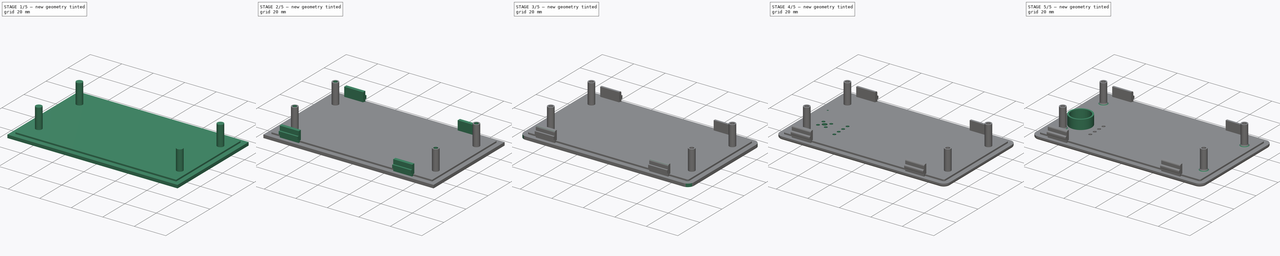
[diagram: build sequence overview — one tinted view per stage of 5, left to right]
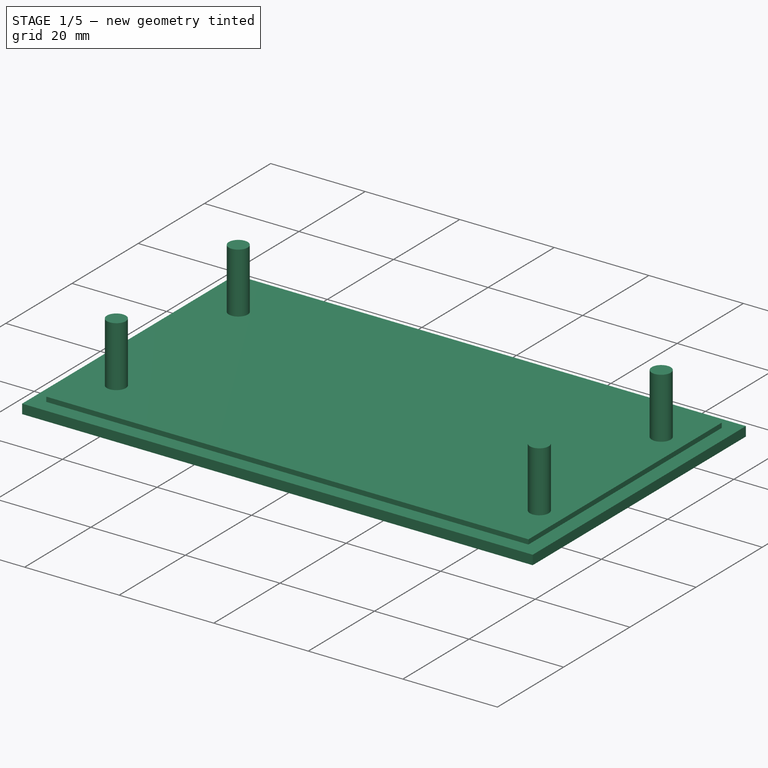
[diagram: stage 1 of 5 — iso view after this stage's code; geometry added in this stage tinted green]
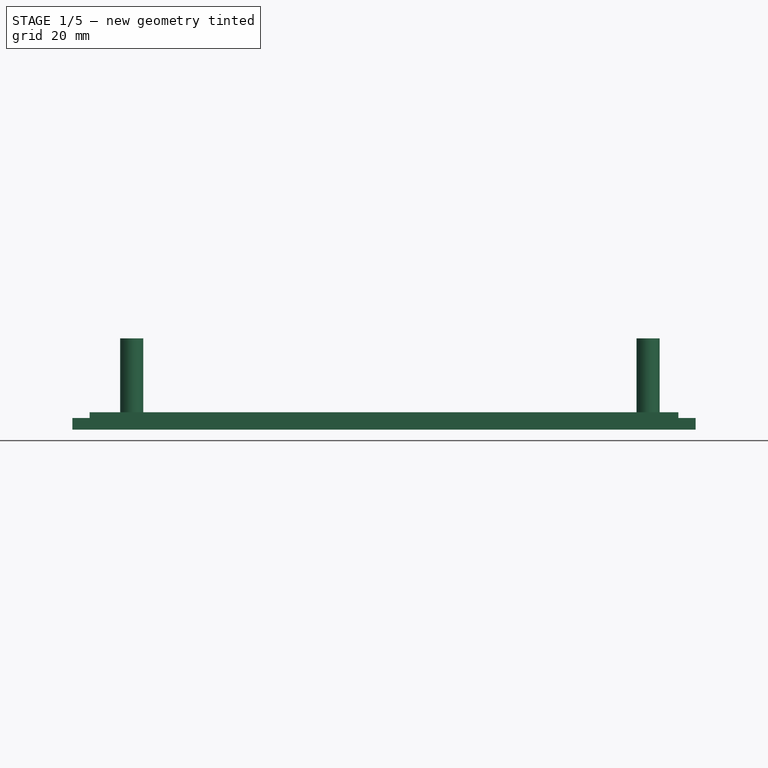
[diagram: stage 1 of 5 — front view after this stage's code; geometry added in this stage tinted green]
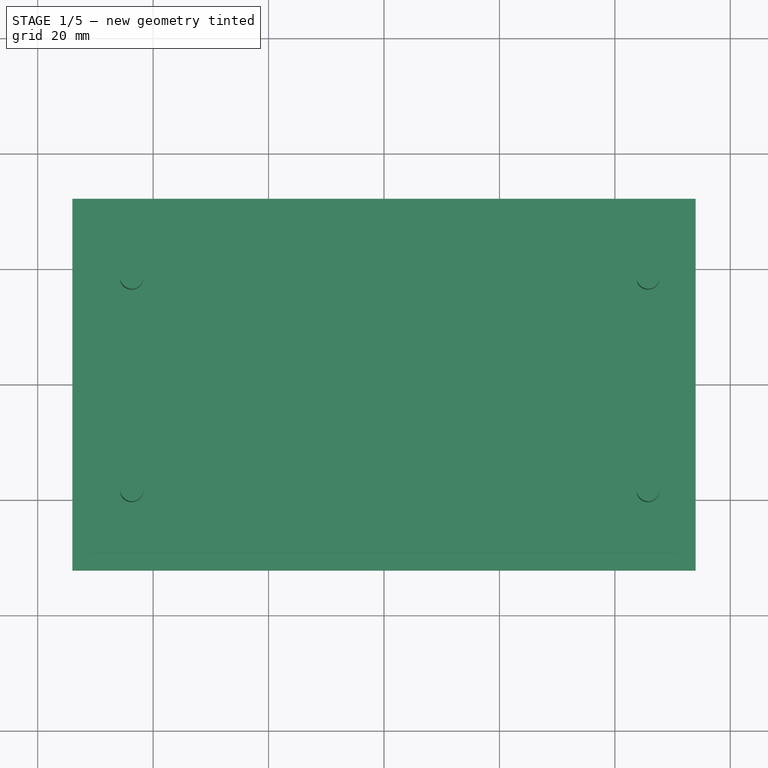
[diagram: stage 1 of 5 — top view after this stage's code; geometry added in this stage tinted green]
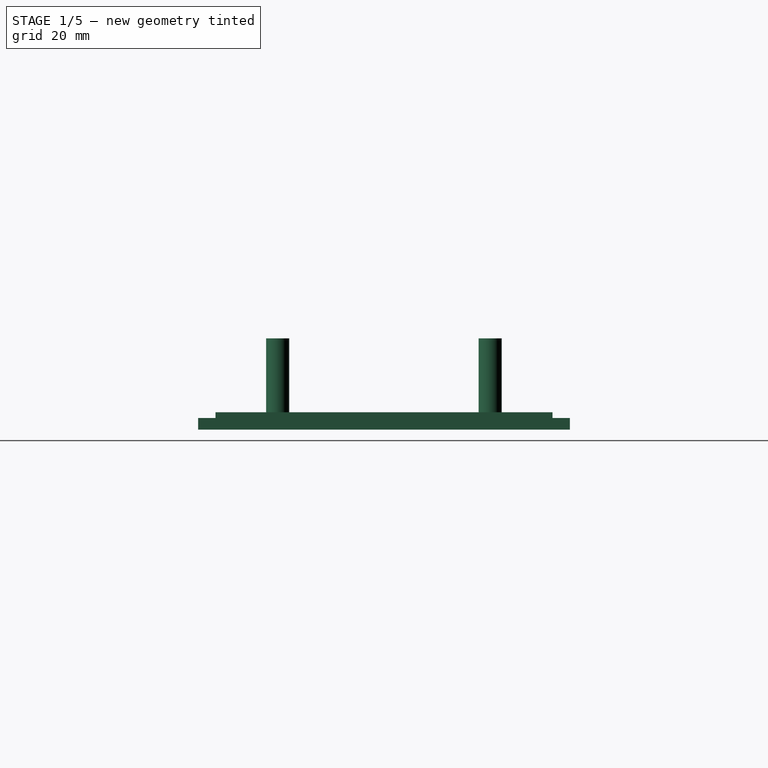
[diagram: stage 1 of 5 — right view after this stage's code; geometry added in this stage tinted green]
FCSTD DOCUMENT  (FreeCAD 0.17R13541 (Git))
Label: Case-Top
License: All rights reserved
LicenseURL: http://en.wikipedia.org/wiki/All_rights_reserved
objects: Sketcher::SketchObject×10, PartDesign::Pad×7, PartDesign::Fillet×7, PartDesign::Pocket×3, PartDesign::Body×1
note: 38 computed .brp shape members not serialized (recipe doc carries the construction recipe); baked Part::Feature solids carry a one-line shape summary decoded from their .brp

FEATURE [Sketcher::SketchObject] Sketch  label="Outer"
  MapMode = 5
  Support = -> [XY_Plane]
  sketch-geometry (8):
    g0: LineSegment [constr] StartX=-51 StartY=29.2 StartZ=0 EndX=51 EndY=29.2 EndZ=0
    g1: LineSegment [constr] StartX=51 StartY=29.2 StartZ=0 EndX=51 EndY=-29.2 EndZ=0
    g2: LineSegment [constr] StartX=51 StartY=-29.2 StartZ=0 EndX=-51 EndY=-29.2 EndZ=0
    g3: LineSegment [constr] StartX=-51 StartY=-29.2 StartZ=0 EndX=-51 EndY=29.2 EndZ=0
    g4: LineSegment StartX=-54 StartY=32.2 StartZ=0 EndX=54 EndY=32.2 EndZ=0
    g5: LineSegment StartX=54 StartY=32.2 StartZ=0 EndX=54 EndY=-32.2 EndZ=0
    g6: LineSegment StartX=54 StartY=-32.2 StartZ=0 EndX=-54 EndY=-32.2 EndZ=0
    g7: LineSegment StartX=-54 StartY=-32.2 StartZ=0 EndX=-54 EndY=32.2 EndZ=0
  constraints (24):
    c: Coincident(g0,g1)
    c: Coincident(g1,g2)
    c: Coincident(g2,g3)
    c: Coincident(g3,g0)
    c: Horizontal(g0)
    c: Horizontal(g2)
    c: Vertical(g1)
    c: Vertical(g3)
    c: Symmetric(g0,g0,g-2)
    c: Symmetric(g0,g1,g-1)
    c: Distance(g0) = 102
    c: DistanceY(g1,g1) = 58.4
    c: Coincident(g4,g5)
    c: Coincident(g5,g6)
    c: Coincident(g6,g7)
    c: Coincident(g7,g4)
    c: Horizontal(g4)
    c: Horizontal(g6)
    c: Vertical(g5)
    c: Vertical(g7)
    c: Symmetric(g4,g4,g-2)
    c: Symmetric(g4,g5,g-1)
    c: DistanceX(g4,g0) = 3
    c: DistanceY(g0,g4) = 3
FEATURE [PartDesign::Pad] Pad
  Length = 2
  Length2 = 100
  Profile = -> Sketch
  Type = 0
FEATURE [Sketcher::SketchObject] Sketch001  label="Inner"
  ExternalGeometry = -> [Pad]
  MapMode = 5
  Placement = pos=(0,0,2) rot=(0,0,1;0rad)
  Support = -> [Pad]
  sketch-geometry (4):
    g0: LineSegment StartX=-51 StartY=29.2 StartZ=0 EndX=51 EndY=29.2 EndZ=0
    g1: LineSegment StartX=51 StartY=29.2 StartZ=0 EndX=51 EndY=-29.2 EndZ=0
    g2: LineSegment StartX=51 StartY=-29.2 StartZ=0 EndX=-51 EndY=-29.2 EndZ=0
    g3: LineSegment StartX=-51 StartY=-29.2 StartZ=0 EndX=-51 EndY=29.2 EndZ=0
  constraints (12):
    c: Coincident(g0,g1)
    c: Coincident(g1,g2)
    c: Coincident(g2,g3)
    c: Coincident(g3,g0)
    c: Horizontal(g0)
    c: Horizontal(g2)
    c: Vertical(g1)
    c: Vertical(g3)
    c: Symmetric(g0,g0,g-2)
    c: Symmetric(g0,g1,g-1)
    c: DistanceX(g-3,g0) = 3
    c: DistanceY(g0,g-3) = 3
FEATURE [PartDesign::Pad] Pad001
  BaseFeature = -> Pad
  Length = 1
  Length2 = 100
  Profile = -> Sketch001
  Type = 0
FEATURE [Sketcher::SketchObject] Sketch002  label="PCB-Supporter"
  ExternalGeometry = -> [Pad001]
  MapMode = 5
  Placement = pos=(0,0,3) rot=(0,0,1;0rad)
  Support = -> [Pad001]
  sketch-geometry (4):
    g0: Circle CenterX=-43.71 CenterY=18.4 CenterZ=0 NormalX=0 NormalY=0 NormalZ=1 AngleXU=0 Radius=2
    g1: Circle CenterX=45.75 CenterY=18.4 CenterZ=0 NormalX=0 NormalY=0 NormalZ=1 AngleXU=0 Radius=2
    g2: Circle CenterX=-43.71 CenterY=-18.425 CenterZ=0 NormalX=0 NormalY=0 NormalZ=1 AngleXU=0 Radius=2
    g3: Circle CenterX=45.75 CenterY=-18.425 CenterZ=0 NormalX=0 NormalY=0 NormalZ=1 AngleXU=0 Radius=2
  constraints (12):
    c: Equal(g0,g1)
    c: Equal(g1,g3)
    c: Equal(g3,g2)
    c: Radius(g1) = 2
    c: Vertical(g0,g2)
    c: Vertical(g1,g3)
    c: Horizontal(g0,g1)
    c: Horizontal(g2,g3)
    c: DistanceX(g-4,g0) = 7.29
    c: DistanceX(g-4,g1) = 96.75
    c: DistanceY(g0,g-4) = 10.8
    c: DistanceY(g2,g-4) = 47.625
FEATURE [PartDesign::Pad] Pad002
  BaseFeature = -> Pad001
  Length = 12.8
  Length2 = 100
  Profile = -> Sketch002
  Type = 0
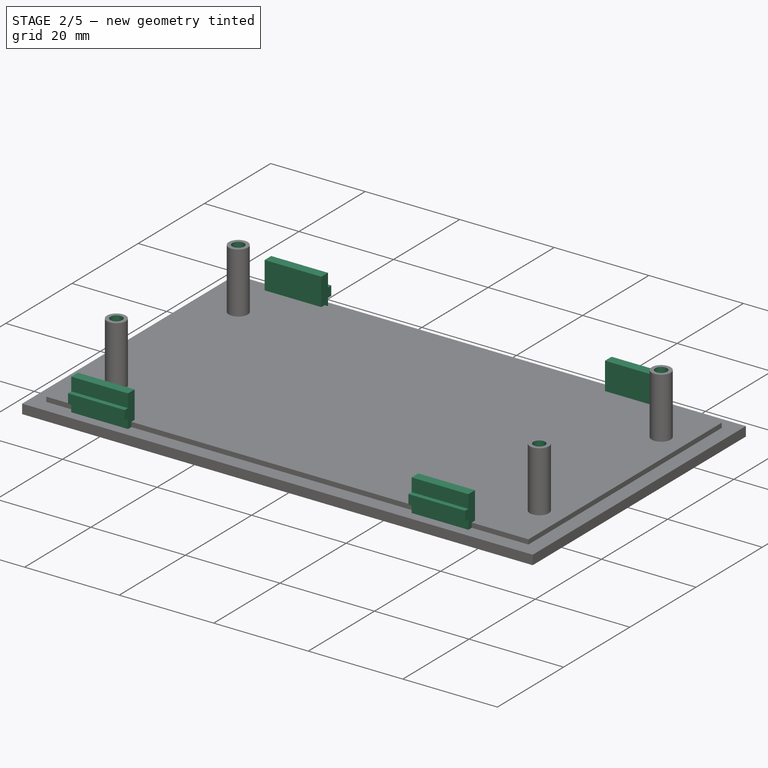
[diagram: stage 2 of 5 — iso view after this stage's code; geometry added in this stage tinted green]
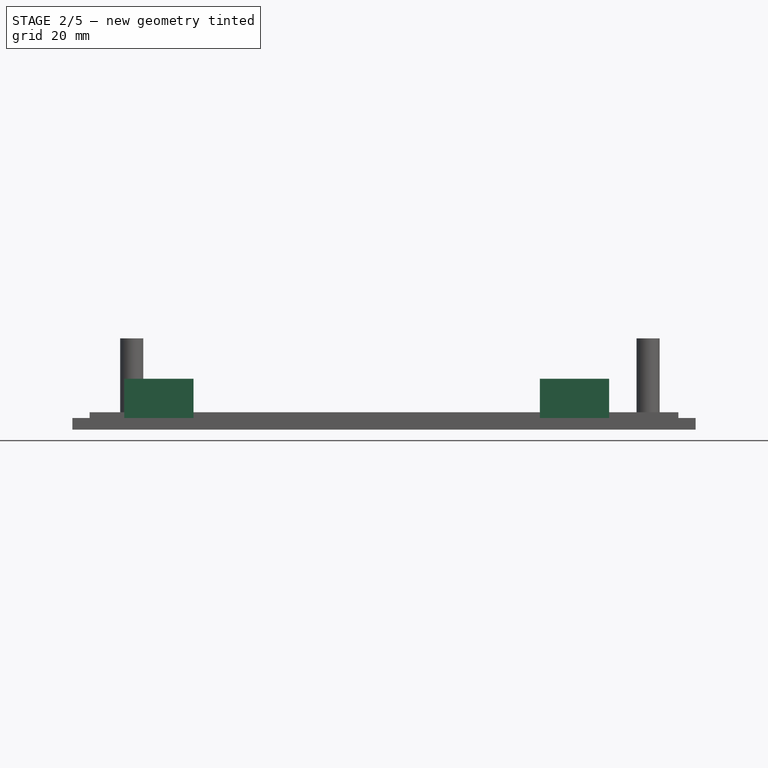
[diagram: stage 2 of 5 — front view after this stage's code; geometry added in this stage tinted green]
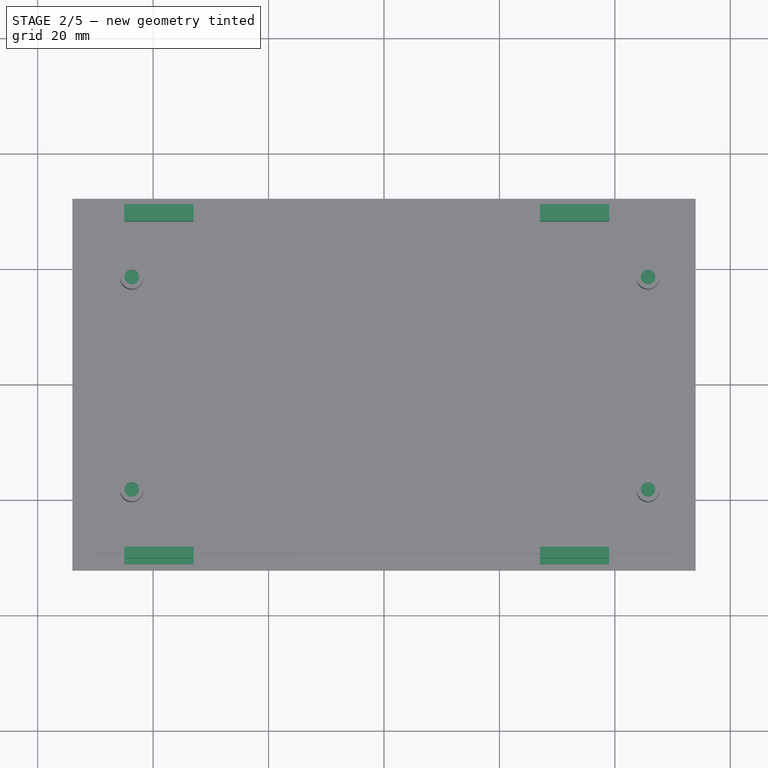
[diagram: stage 2 of 5 — top view after this stage's code; geometry added in this stage tinted green]
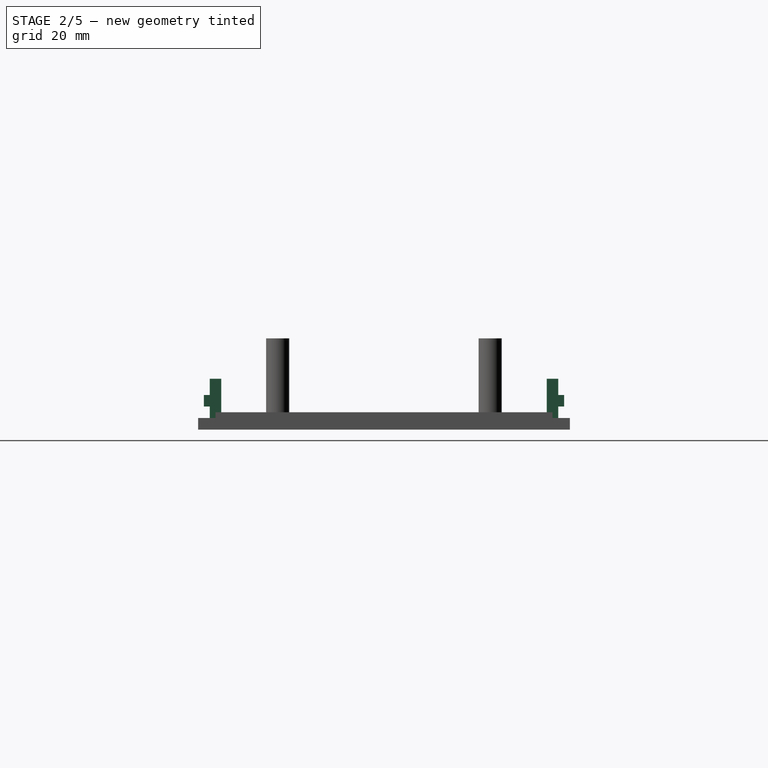
[diagram: stage 2 of 5 — right view after this stage's code; geometry added in this stage tinted green]
FEATURE [Sketcher::SketchObject] Sketch003  label="PCB-Hole"
  AttachmentOffset = pos=(0,0,16.8) rot=(0,0,1;0rad)
  ExternalGeometry = -> [Pad002]
  MapMode = 5
  Placement = pos=(0,0,16.8) rot=(0,0,1;0rad)
  Support = -> [XY_Plane]
  sketch-geometry (4):
    g0: Circle CenterX=-43.71 CenterY=18.4 CenterZ=0 NormalX=0 NormalY=0 NormalZ=1 AngleXU=0 Radius=1.25
    g1: Circle CenterX=45.75 CenterY=18.4 CenterZ=0 NormalX=0 NormalY=0 NormalZ=1 AngleXU=0 Radius=1.25
    g2: Circle CenterX=45.75 CenterY=-18.425 CenterZ=0 NormalX=0 NormalY=0 NormalZ=1 AngleXU=0 Radius=1.25
    g3: Circle CenterX=-43.71 CenterY=-18.425 CenterZ=0 NormalX=0 NormalY=0 NormalZ=1 AngleXU=0 Radius=1.25
  constraints (8):
    c: Coincident(g1,g-4)
    c: Coincident(g2,g-6)
    c: Coincident(g3,g-5)
    c: Coincident(g0,g-3)
    c: Radius(g0) = 1.25
    c: Equal(g0,g3)
    c: Equal(g0,g1)
    c: Equal(g0,g2)
FEATURE [PartDesign::Pocket] Pocket
  BaseFeature = -> Pad002
  Length = 4
  Length2 = 100
  Profile = -> Sketch003
  Type = 0
FEATURE [Sketcher::SketchObject] Sketch004  label="Locking-Bar"
  AttachmentOffset = pos=(0,0,-1) rot=(0,0,1;0rad)
  ExternalGeometry = -> [Pocket]
  MapMode = 5
  Placement = pos=(0,0,2) rot=(0,0,1;0rad)
  Support = -> [Pocket]
  sketch-geometry (16):
    g0: LineSegment StartX=-45 StartY=30.2 StartZ=0 EndX=-33 EndY=30.2 EndZ=0
    g1: LineSegment StartX=-33 StartY=30.2 StartZ=0 EndX=-33 EndY=28.2 EndZ=0
    g2: LineSegment StartX=-33 StartY=28.2 StartZ=0 EndX=-45 EndY=28.2 EndZ=0
    g3: LineSegment StartX=-45 StartY=28.2 StartZ=0 EndX=-45 EndY=30.2 EndZ=0
    g4: LineSegment StartX=27 StartY=30.2 StartZ=0 EndX=39 EndY=30.2 EndZ=0
    g5: LineSegment StartX=39 StartY=30.2 StartZ=0 EndX=39 EndY=28.2 EndZ=0
    g6: LineSegment StartX=39 StartY=28.2 StartZ=0 EndX=27 EndY=28.2 EndZ=0
    g7: LineSegment StartX=27 StartY=28.2 StartZ=0 EndX=27 EndY=30.2 EndZ=0
    g8: LineSegment StartX=-45 StartY=-28.2 StartZ=0 EndX=-33 EndY=-28.2 EndZ=0
    g9: LineSegment StartX=-33 StartY=-28.2 StartZ=0 EndX=-33 EndY=-30.2 EndZ=0
    g10: LineSegment StartX=-33 StartY=-30.2 StartZ=0 EndX=-45 EndY=-30.2 EndZ=0
    g11: LineSegment StartX=-45 StartY=-30.2 StartZ=0 EndX=-45 EndY=-28.2 EndZ=0
    g12: LineSegment StartX=27 StartY=-28.2 StartZ=0 EndX=39 EndY=-28.2 EndZ=0
    g13: LineSegment StartX=39 StartY=-28.2 StartZ=0 EndX=39 EndY=-30.2 EndZ=0
    g14: LineSegment StartX=39 StartY=-30.2 StartZ=0 EndX=27 EndY=-30.2 EndZ=0
    g15: LineSegment StartX=27 StartY=-30.2 StartZ=0 EndX=27 EndY=-28.2 EndZ=0
  constraints (48):
    c: Coincident(g0,g1)
    c: Coincident(g1,g2)
    c: Coincident(g2,g3)
    c: Coincident(g3,g0)
    c: Horizontal(g0)
    c: Horizontal(g2)
    c: Vertical(g1)
    c: Vertical(g3)
    c: Coincident(g4,g5)
    c: Coincident(g5,g6)
    c: Coincident(g6,g7)
    c: Coincident(g7,g4)
    c: Horizontal(g4)
    c: Horizontal(g6)
    c: Vertical(g5)
    c: Vertical(g7)
    c: Coincident(g8,g9)
    c: Coincident(g9,g10)
    c: Coincident(g10,g11)
    c: Coincident(g11,g8)
    c: Horizontal(g8)
    c: Horizontal(g10)
    c: Vertical(g9)
    c: Vertical(g11)
    c: Coincident(g12,g13)
    c: Coincident(g13,g14)
    c: Coincident(g14,g15)
    c: Coincident(g15,g12)
    c: Horizontal(g12)
    c: Horizontal(g14)
    c: Vertical(g13)
    c: Vertical(g15)
    c: Equal(g0,g4)
    c: Equal(g4,g12)
    c: Equal(g12,g8)
    c: Equal(g1,g5)
    c: Equal(g5,g13)
    c: Equal(g13,g9)
    c: DistanceY(g3,g3) = 2
    c: DistanceX(g0,g0) = 12
    c: DistanceX(g4,g-3) = 12
    c: DistanceX(g0,g-3) = 84
    c: Vertical(g1,g8)
    c: Vertical(g5,g13)
    c: DistanceY(g-4,g10) = -1
    c: DistanceY(g-3,g0) = 1
    c: Horizontal(g9,g14)
    c: Horizontal(g1,g6)
FEATURE [PartDesign::Pad] Pad003
  BaseFeature = -> Pocket
  Length = 6.8
  Length2 = 100
  Profile = -> Sketch004
  Type = 0
FEATURE [Sketcher::SketchObject] Sketch005  label="Locking-Bump-L"
  ExternalGeometry = -> [Pad003]
  MapMode = 5
  Placement = pos=(0,-30.2,0) rot=(1,0,0;1.5708rad)
  Support = -> [Pad003]
  sketch-geometry (8):
    g0: LineSegment StartX=39 StartY=6 StartZ=0 EndX=27 EndY=6 EndZ=0
    g1: LineSegment StartX=27 StartY=6 StartZ=0 EndX=27 EndY=4 EndZ=0
    g2: LineSegment StartX=27 StartY=4 StartZ=0 EndX=39 EndY=4 EndZ=0
    g3: LineSegment StartX=39 StartY=4 StartZ=0 EndX=39 EndY=6 EndZ=0
    g4: LineSegment StartX=-33 StartY=6 StartZ=0 EndX=-45 EndY=6 EndZ=0
    g5: LineSegment StartX=-45 StartY=6 StartZ=0 EndX=-45 EndY=4 EndZ=0
    g6: LineSegment StartX=-45 StartY=4 StartZ=0 EndX=-33 EndY=4 EndZ=0
    g7: LineSegment StartX=-33 StartY=4 StartZ=0 EndX=-33 EndY=6 EndZ=0
  constraints (24):
    c: Coincident(g0,g1)
    c: Coincident(g1,g2)
    c: Coincident(g2,g3)
    c: Coincident(g3,g0)
    c: Horizontal(g0)
    c: Horizontal(g2)
    c: Vertical(g1)
    c: Vertical(g3)
    c: Coincident(g4,g5)
    c: Coincident(g5,g6)
    c: Coincident(g6,g7)
    c: Coincident(g7,g4)
    c: Horizontal(g4)
    c: Horizontal(g6)
    c: Vertical(g5)
    c: Vertical(g7)
    c: Equal(g1,g7)
    c: DistanceY(g5,g5) = 2
    c: Horizontal(g1,g6)
    c: DistanceY(g-3,g1) = 1
    c: Vertical(g5,g-4)
    c: Vertical(g6,g-4)
    c: Vertical(g1,g-3)
    c: Vertical(g-3,g2)
FEATURE [PartDesign::Pad] Pad004
  BaseFeature = -> Pad003
  Length = 1
  Length2 = 100
  Profile = -> Sketch005
  Type = 0
FEATURE [Sketcher::SketchObject] Sketch006  label="Locking-Bump-R"
  ExternalGeometry = -> [Pad004]
  MapMode = 5
  Placement = pos=(0,30.2,0) rot=(0,0.707107,0.707107;3.14159rad)
  sketch-geometry (8):
    g0: LineSegment StartX=-39 StartY=6 StartZ=0 EndX=-27 EndY=6 EndZ=0
    g1: LineSegment StartX=-27 StartY=6 StartZ=0 EndX=-27 EndY=4 EndZ=0
    g2: LineSegment StartX=-27 StartY=4 StartZ=0 EndX=-39 EndY=4 EndZ=0
    g3: LineSegment StartX=-39 StartY=4 StartZ=0 EndX=-39 EndY=6 EndZ=0
    g4: LineSegment StartX=33 StartY=6 StartZ=0 EndX=45 EndY=6 EndZ=0
    g5: LineSegment StartX=45 StartY=6 StartZ=0 EndX=45 EndY=4 EndZ=0
    g6: LineSegment StartX=45 StartY=4 StartZ=0 EndX=33 EndY=4 EndZ=0
    g7: LineSegment StartX=33 StartY=4 StartZ=0 EndX=33 EndY=6 EndZ=0
  constraints (24):
    c: Coincident(g0,g1)
    c: Coincident(g1,g2)
    c: Coincident(g2,g3)
    c: Coincident(g3,g0)
    c: Horizontal(g0)
    c: Horizontal(g2)
    c: Vertical(g1)
    c: Vertical(g3)
    c: Coincident(g4,g5)
    c: Coincident(g5,g6)
    c: Coincident(g6,g7)
    c: Coincident(g7,g4)
    c: Horizontal(g4)
    c: Horizontal(g6)
    c: Vertical(g5)
    c: Vertical(g7)
    c: Vertical(g2,g-3)
    c: Vertical(g-3,g1)
    c: Vertical(g-4,g6)
    c: Vertical(g-4,g5)
    c: Horizontal(g1,g6)
    c: Equal(g3,g5)
    c: DistanceY(g3,g3) = 2
    c: DistanceY(g-3,g1) = 1
FEATURE [PartDesign::Pad] Pad005
  BaseFeature = -> Pad004
  Length = 1
  Length2 = 100
  Profile = -> Sketch006
  Type = 0
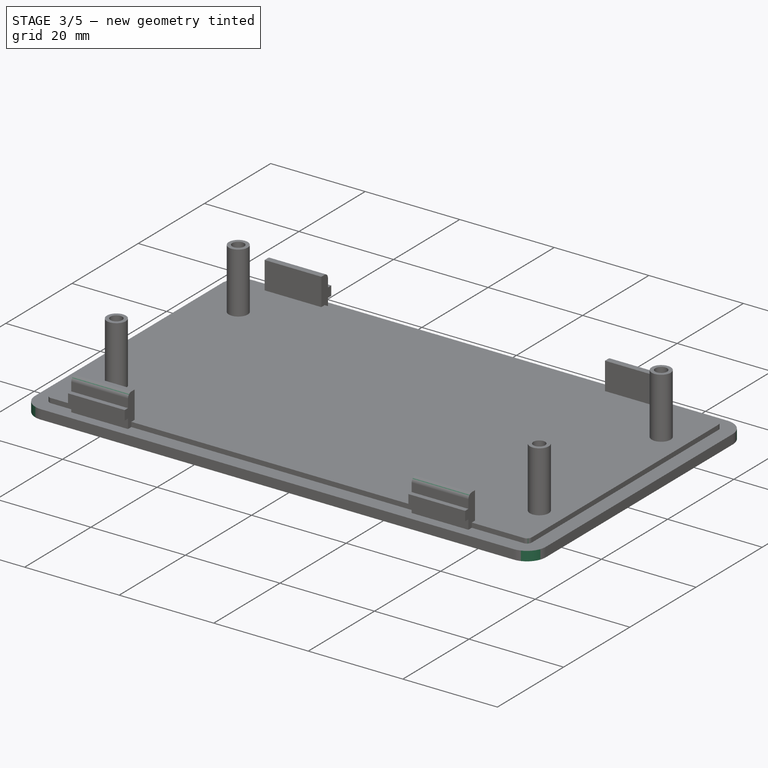
[diagram: stage 3 of 5 — iso view after this stage's code; geometry added in this stage tinted green]
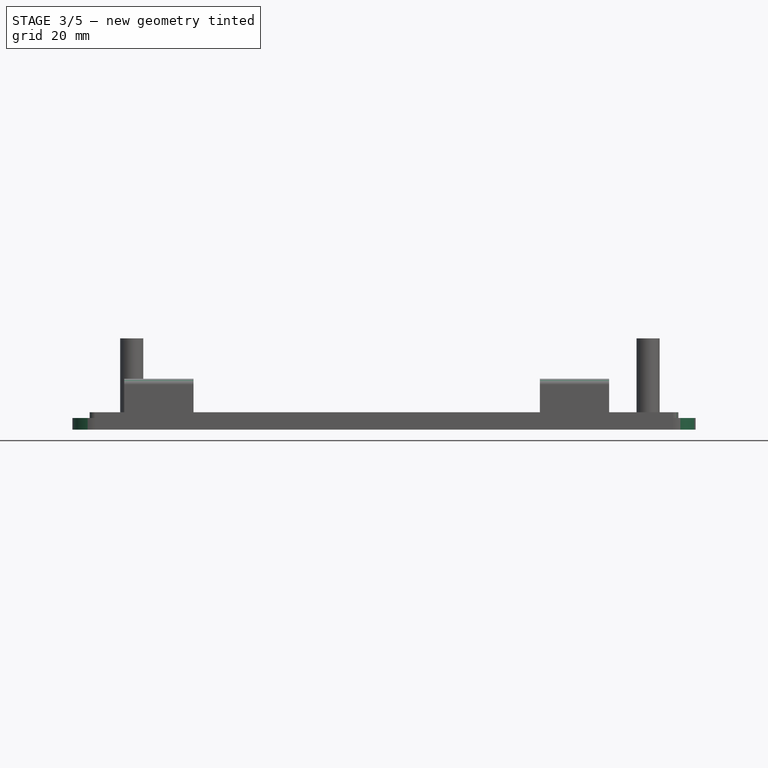
[diagram: stage 3 of 5 — front view after this stage's code; geometry added in this stage tinted green]
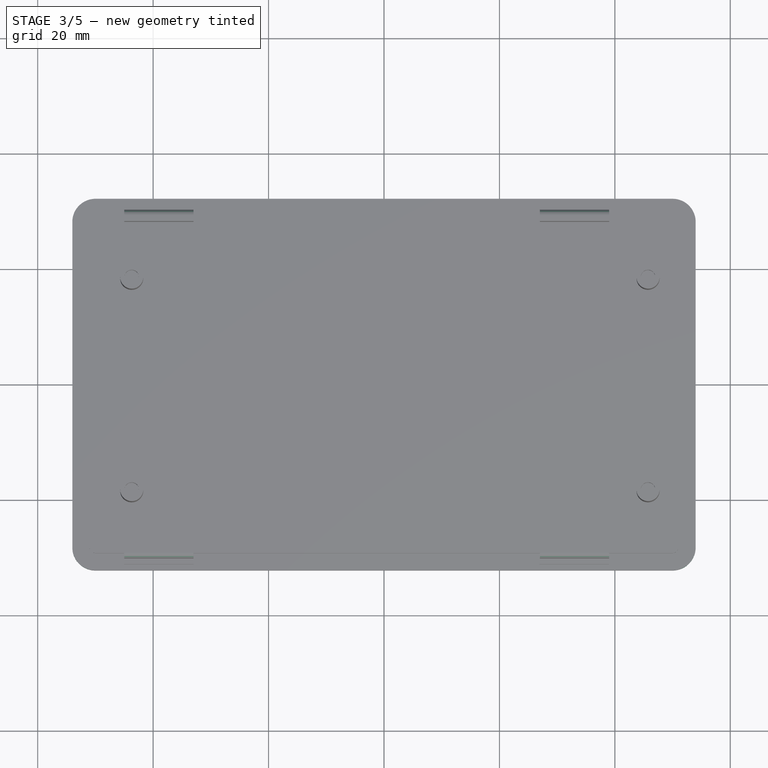
[diagram: stage 3 of 5 — top view after this stage's code; geometry added in this stage tinted green]
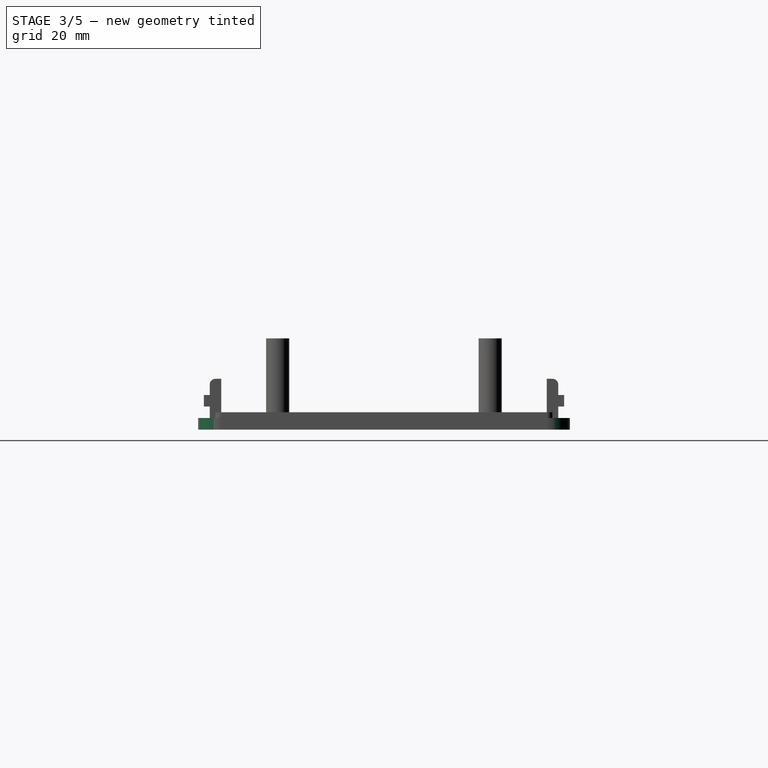
[diagram: stage 3 of 5 — right view after this stage's code; geometry added in this stage tinted green]
FEATURE [PartDesign::Fillet] Fillet  label="Fillet-Outer"
  Base = -> Pad005 [Edge1,Edge2,Edge5,Edge8]
  BaseFeature = -> Pad005
  Radius = 4
FEATURE [PartDesign::Fillet] Fillet001  label="Fillet-Inner"
  Base = -> Fillet [Edge47,Edge114,Edge81,Edge78]
  BaseFeature = -> Fillet
  Radius = 1
FEATURE [PartDesign::Fillet] Fillet002  label="Fillet-Locking-Bar"
  Base = -> Fillet001 [Edge151,Edge171,Edge154,Edge138]
  BaseFeature = -> Fillet001
  Radius = 1
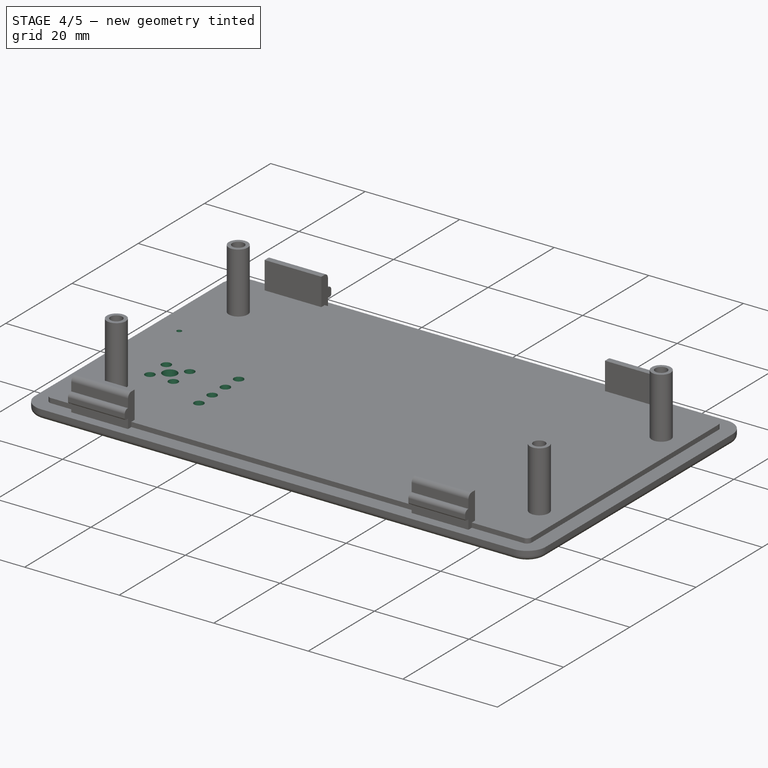
[diagram: stage 4 of 5 — iso view after this stage's code; geometry added in this stage tinted green]
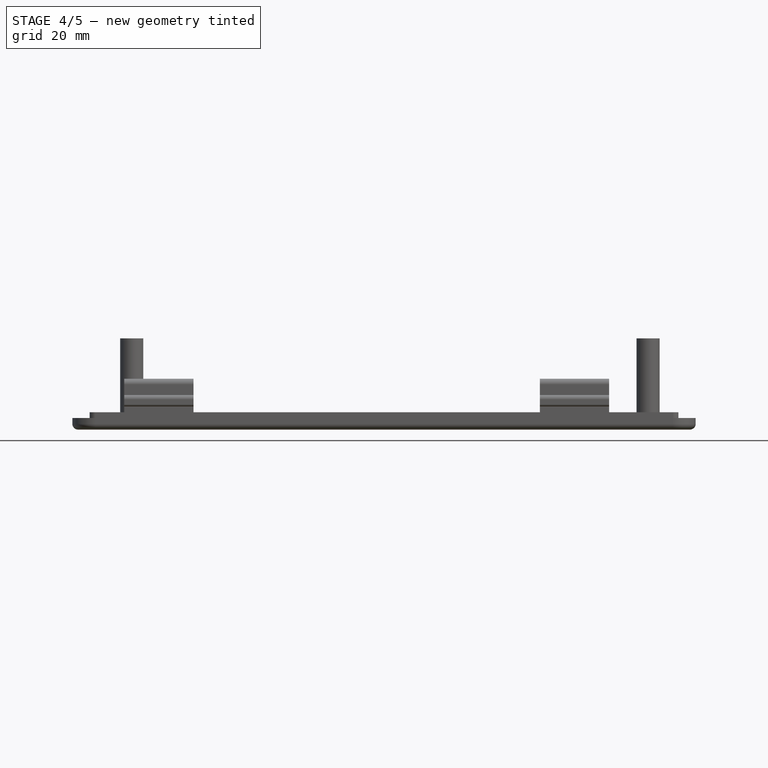
[diagram: stage 4 of 5 — front view after this stage's code; geometry added in this stage tinted green]
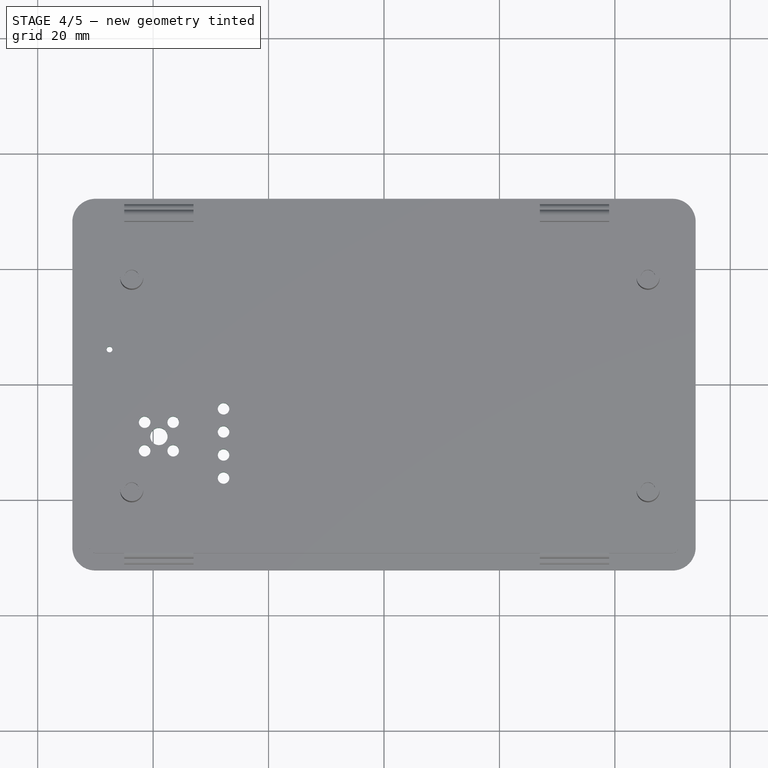
[diagram: stage 4 of 5 — top view after this stage's code; geometry added in this stage tinted green]
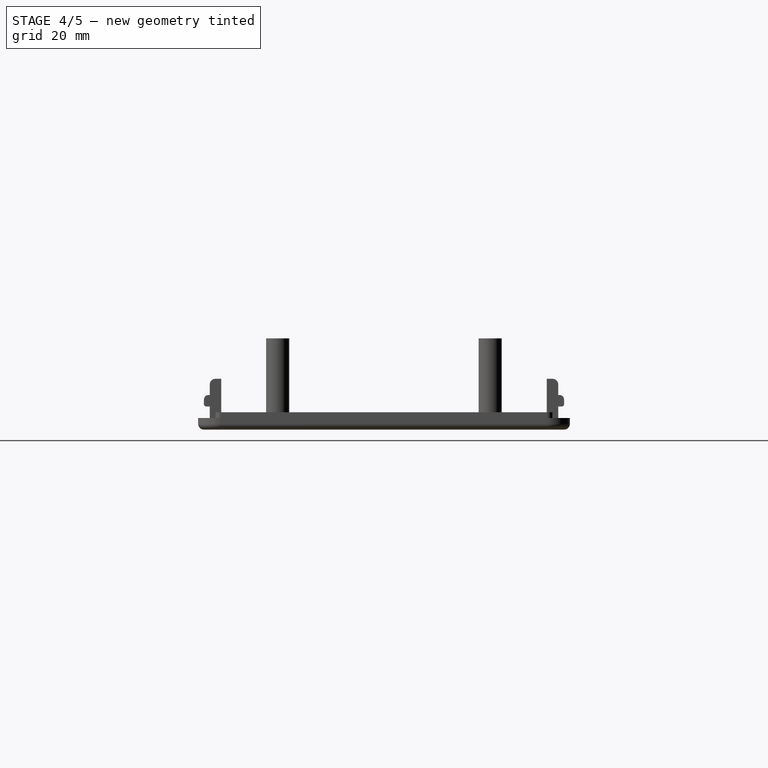
[diagram: stage 4 of 5 — right view after this stage's code; geometry added in this stage tinted green]
FEATURE [PartDesign::Fillet] Fillet003  label="Fillet-Locking-Bump-Up"
  Base = -> Fillet002 [Edge85,Edge204,Edge202,Edge203]
  BaseFeature = -> Fillet002
  Radius = 0.8
FEATURE [PartDesign::Fillet] Fillet004  label="Fillet-Locking-Bump-Bottom"
  Base = -> Fillet003 [Edge210,Edge208,Edge19,Edge209]
  BaseFeature = -> Fillet003
  Radius = 0.4
FEATURE [PartDesign::Fillet] Fillet005  label="Fillet-Top"
  Base = -> Fillet004 [Edge173]
  BaseFeature = -> Fillet004
  Radius = 1
FEATURE [Sketcher::SketchObject] Sketch007  label="Top-Hole"
  ExternalGeometry = -> [Fillet005]
  MapMode = 5
  Placement = pos=(0,0,3) rot=(0,0,1;0rad)
  Support = -> [Fillet005]
  sketch-geometry (16):
    g0: Circle CenterX=-39 CenterY=-9 CenterZ=0 NormalX=0 NormalY=0 NormalZ=1 AngleXU=0 Radius=1.5
    g1: Circle CenterX=-27.8 CenterY=-4.2 CenterZ=0 NormalX=0 NormalY=0 NormalZ=1 AngleXU=0 Radius=1
    g2: Circle CenterX=-27.8 CenterY=-8.2 CenterZ=0 NormalX=0 NormalY=0 NormalZ=1 AngleXU=0 Radius=1
    g3: Circle CenterX=-27.8 CenterY=-12.2 CenterZ=0 NormalX=0 NormalY=0 NormalZ=1 AngleXU=0 Radius=1
    g4: Circle CenterX=-27.8 CenterY=-16.2 CenterZ=0 NormalX=0 NormalY=0 NormalZ=1 AngleXU=0 Radius=1
    g5: Circle CenterX=-47.56 CenterY=6.08 CenterZ=0 NormalX=0 NormalY=0 NormalZ=1 AngleXU=0 Radius=0.5
    g6: LineSegment [constr] StartX=-41.4749 StartY=-6.52513 StartZ=0 EndX=-36.5251 EndY=-6.52513 EndZ=0
    g7: LineSegment [constr] StartX=-36.5251 StartY=-6.52513 StartZ=0 EndX=-36.5251 EndY=-11.4749 EndZ=0
    g8: LineSegment [constr] StartX=-36.5251 StartY=-11.4749 StartZ=0 EndX=-41.4749 EndY=-11.4749 EndZ=0
    g9: LineSegment [constr] StartX=-41.4749 StartY=-11.4749 StartZ=0 EndX=-41.4749 EndY=-6.52513 EndZ=0
    g10: LineSegment [constr] StartX=-41.4749 StartY=-6.52513 StartZ=0 EndX=-39 EndY=-9 EndZ=0
    g11: Circle CenterX=-41.4749 CenterY=-6.52513 CenterZ=0 NormalX=0 NormalY=0 NormalZ=1 AngleXU=0 Radius=1
    g12: Circle CenterX=-36.5251 CenterY=-6.52513 CenterZ=0 NormalX=0 NormalY=0 NormalZ=1 AngleXU=0 Radius=1
    g13: Circle CenterX=-36.5251 CenterY=-11.4749 CenterZ=0 NormalX=0 NormalY=0 NormalZ=1 AngleXU=0 Radius=1
    g14: Circle CenterX=-41.4749 CenterY=-11.4749 CenterZ=0 NormalX=0 NormalY=0 NormalZ=1 AngleXU=0 Radius=1
    g15: LineSegment [constr] StartX=-36.5251 StartY=-11.4749 StartZ=0 EndX=-39 EndY=-9 EndZ=0
  constraints (42):
    c: DistanceX(g0,g-6) = 90
    c: DistanceY(g-5,g0) = 20.2
    c: Vertical(g1,g2)
    c: Vertical(g2,g3)
    c: Vertical(g3,g4)
    c: Radius(g1) = 1
    c: Equal(g1,g2)
    c: Equal(g1,g3)
    c: Equal(g1,g4)
    c: DistanceX(g4,g-6) = 78.8
    c: DistanceY(g-5,g4) = 13
    c: DistanceY(g4,g3) = 4
    c: DistanceY(g3,g2) = 4
    c: DistanceY(g2,g1) = 4
    c: DistanceX(g5,g-6) = 98.56
    c: DistanceY(g-5,g5) = 35.28
    c: Radius(g0) = 1.5
    c: Radius(g5) = 0.5
    c: Coincident(g6,g7)
    c: Coincident(g7,g8)
    c: Coincident(g8,g9)
    c: Coincident(g9,g6)
    c: Horizontal(g6)
    c: Horizontal(g8)
    c: Vertical(g7)
    c: Vertical(g9)
    c: Coincident(g10,g6)
    c: Coincident(g10,g0)
    c: Angle(g10,g6) = 0.785398
    c: Coincident(g11,g6)
    c: Coincident(g12,g6)
    c: Coincident(g13,g7)
    c: Coincident(g14,g8)
    c: Radius(g12) = 1
    c: Equal(g12,g13)
    c: Equal(g12,g14)
    c: Equal(g12,g11)
    c: Coincident(g15,g7)
    c: Coincident(g15,g0)
    c: Angle(g15,g8) = 0.785398
    c: Equal(g15,g10)
    c: Distance(g0,g6) = 3.5
FEATURE [PartDesign::Pocket] Pocket001
  BaseFeature = -> Fillet005
  Length = 5
  Length2 = 100
  Profile = -> Sketch007
  Type = 1
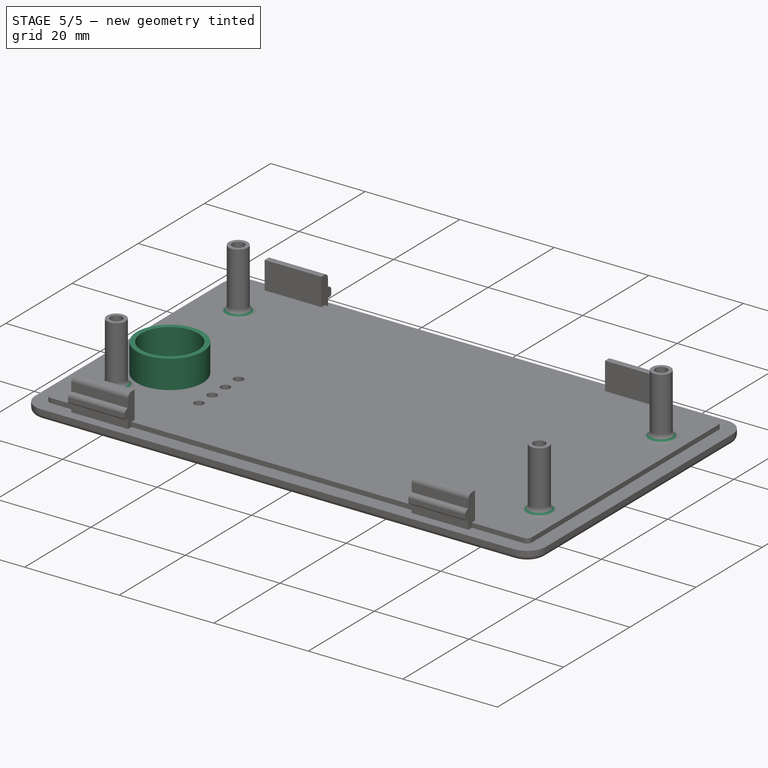
[diagram: stage 5 of 5 — iso view after this stage's code; geometry added in this stage tinted green]
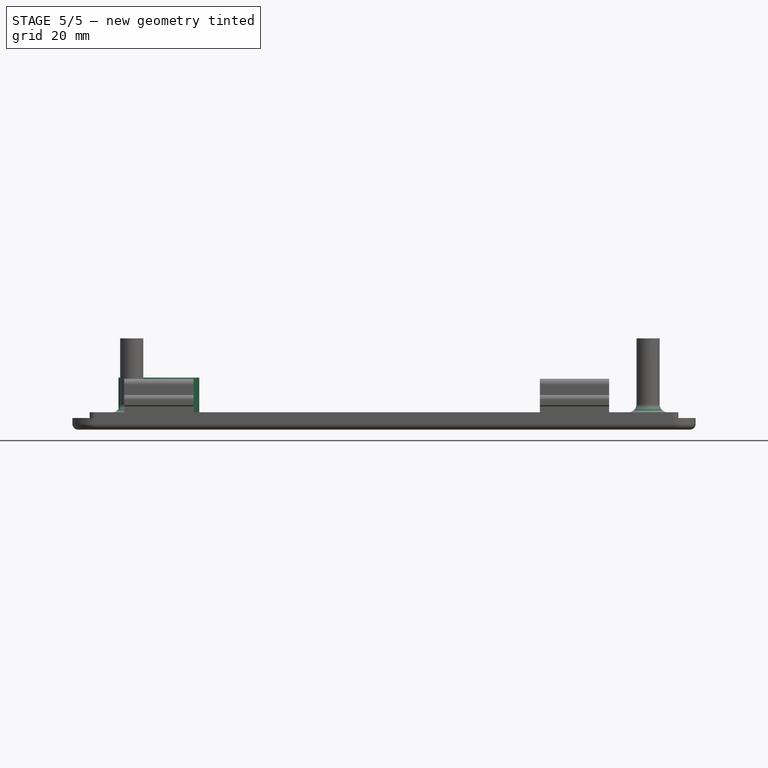
[diagram: stage 5 of 5 — front view after this stage's code; geometry added in this stage tinted green]
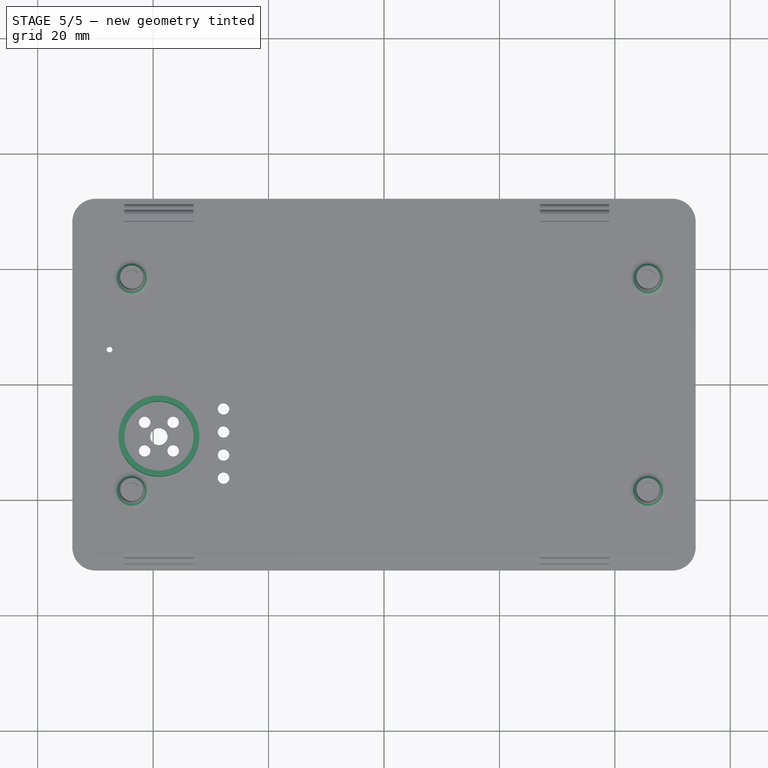
[diagram: stage 5 of 5 — top view after this stage's code; geometry added in this stage tinted green]
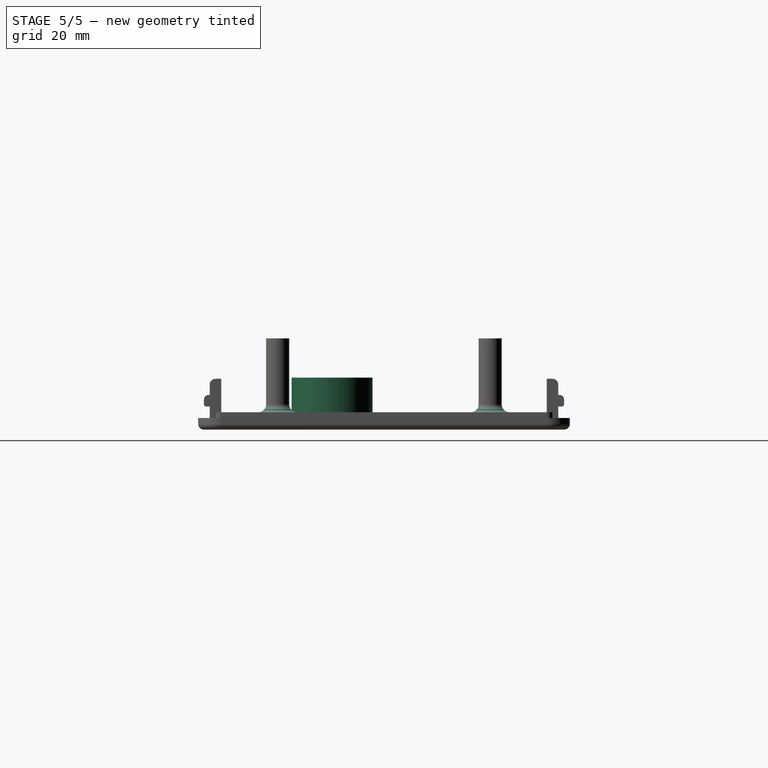
[diagram: stage 5 of 5 — right view after this stage's code; geometry added in this stage tinted green]
FEATURE [Sketcher::SketchObject] Sketch008  label="Buzzer-Outer"
  ExternalGeometry = -> [Pocket001]
  MapMode = 5
  Placement = pos=(0,0,3) rot=(0,0,1;0rad)
  Support = -> [Pocket001]
  sketch-geometry (1):
    g0: Circle CenterX=-39 CenterY=-9 CenterZ=0 NormalX=0 NormalY=0 NormalZ=1 AngleXU=0 Radius=7
  constraints (2):
    c: Coincident(g0,g-3)
    c: Radius(g0) = 7
FEATURE [PartDesign::Pad] Pad006
  BaseFeature = -> Pocket001
  Length = 6
  Length2 = 100
  Profile = -> Sketch008
  Type = 0
FEATURE [Sketcher::SketchObject] Sketch009  label="Buzzer-Inner"
  ExternalGeometry = -> [Pad006]
  MapMode = 5
  Placement = pos=(0,0,9) rot=(0,0,1;0rad)
  Support = -> [Pad006]
  sketch-geometry (1):
    g0: Circle CenterX=-39 CenterY=-9 CenterZ=0 NormalX=0 NormalY=0 NormalZ=1 AngleXU=0 Radius=6
  constraints (2):
    c: Coincident(g0,g-3)
    c: Radius(g0) = 6
FEATURE [PartDesign::Pocket] Pocket002
  BaseFeature = -> Pad006
  Length = 6
  Length2 = 100
  Profile = -> Sketch009
  Type = 0
FEATURE [PartDesign::Fillet] Fillet006
  Base = -> Pocket002 [Edge188,Edge189,Edge190,Edge191]
  BaseFeature = -> Pocket002
  Radius = 1.4
FEATURE [PartDesign::Body] Body
  Group = -> [Sketch,Pad,Sketch001,Pad001,Sketch002,Pad002,Sketch003,Pocket,Sketch004,Pad003,Sketch005,Sketch006,Pad004,Pad005,Fillet,Fillet001,Fillet002,Fillet003,Fillet004,Fillet005,Sketch007,Pocket001,Sketch008,Pad006,Sketch009,Pocket002,Fillet006]
  Origin = -> Origin
  Tip = -> Fillet006
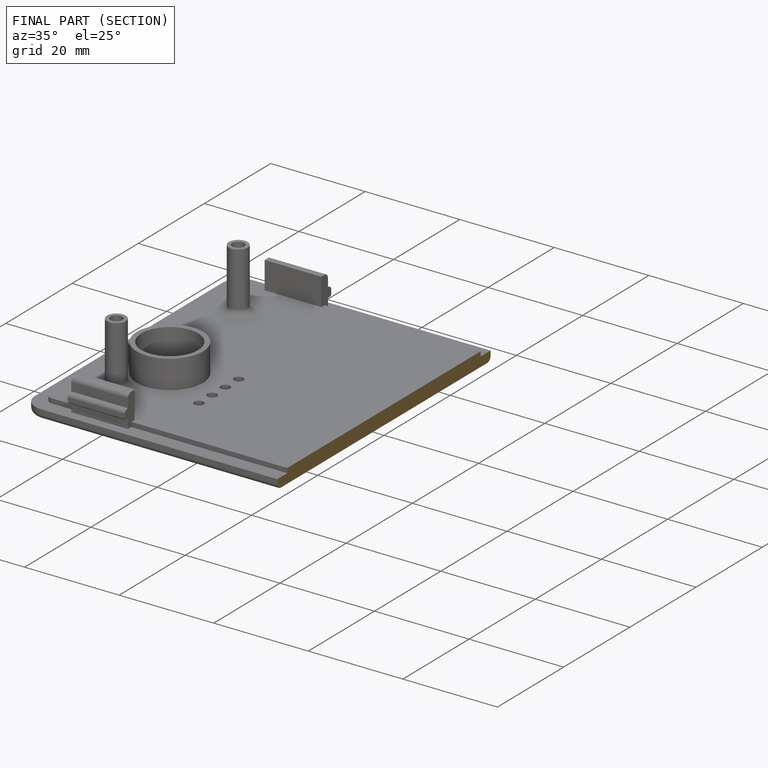
[diagram: finished part — half-section view (interior)]
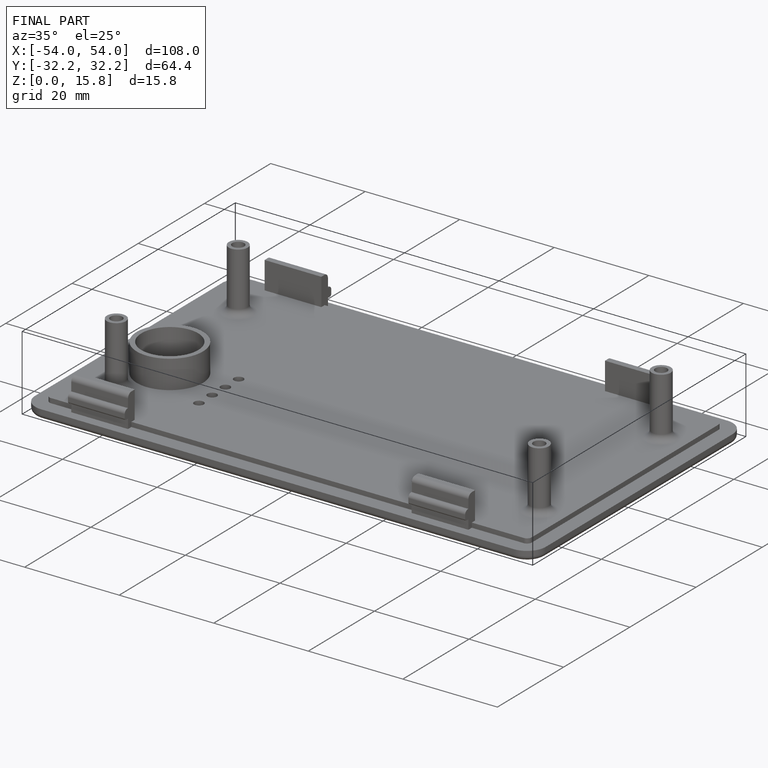
[diagram: finished part — iso view with bounding-box wireframe]
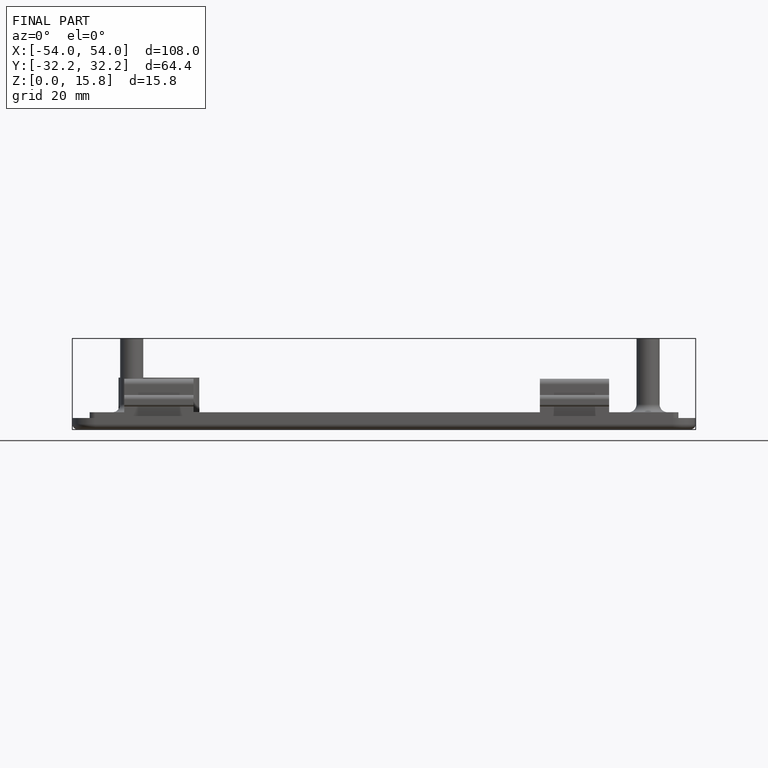
[diagram: finished part — front view with bounding-box wireframe]
